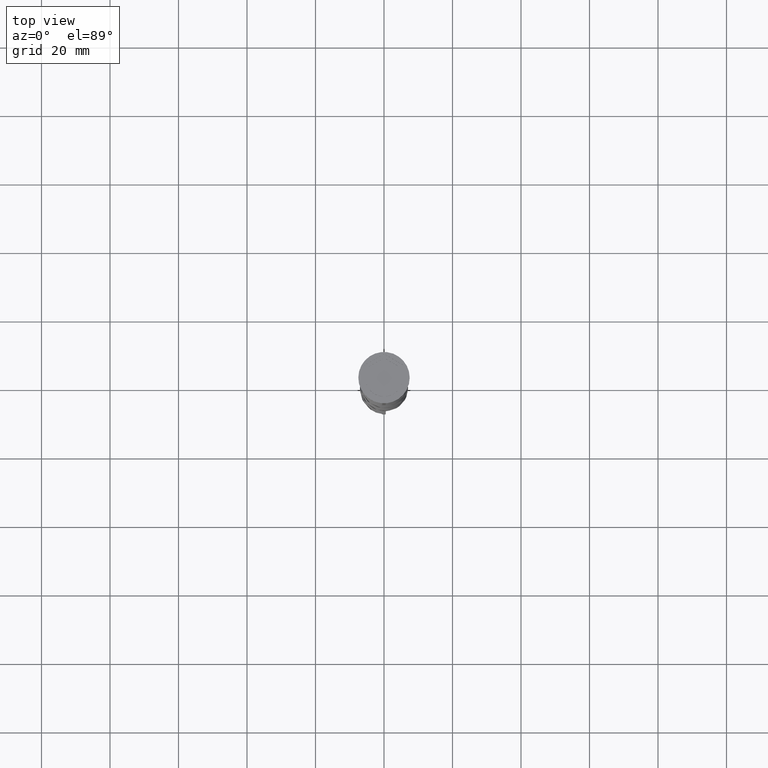
[diagram: clean part render]
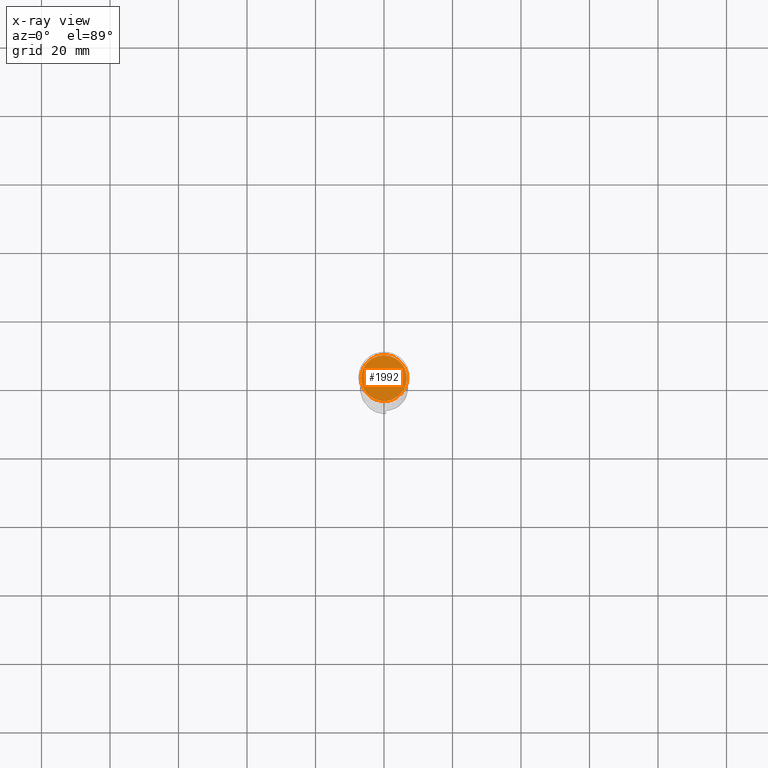
[diagram: x-ray — body ghosted, one internal face saturated and labeled with its STEP entity id]
A machine part, top view, then the same camera in x-ray: the body is ghosted and one INTERNAL B-rep face — a face not visible from any outside direction — is saturated and labeled: STEP entity #1992.
In plain terms, the highlighted planar face has unit normal (0, 0, -1).
Its self-contained STEP definition (entity closure, byte-faithful):
#66 = CARTESIAN_POINT ( 'NONE',  ( 0.000000000000000000, 0.000000000000000000, -10.50000000000000178 ) ) ;
#135 = AXIS2_PLACEMENT_3D ( 'NONE', #576, #3881, #3307 ) ;
#529 = DIRECTION ( 'NONE',  ( -0.000000000000000000, -0.000000000000000000, 1.000000000000000000 ) ) ;
#576 = CARTESIAN_POINT ( 'NONE',  ( 0.000000000000000000, 0.000000000000000000, -10.50000000000000178 ) ) ;
#617 = DIRECTION ( 'NONE',  ( 0.000000000000000000, 0.000000000000000000, -1.000000000000000000 ) ) ;
#743 = DIRECTION ( 'NONE',  ( -1.000000000000000000, 0.000000000000000000, 0.000000000000000000 ) ) ;
#767 = CIRCLE ( 'NONE', #3533, 6.700000000000001066 ) ;
#1205 = ORIENTED_EDGE ( 'NONE', *, *, #1977, .T. ) ;
#1292 = VERTEX_POINT ( 'NONE', #1580 ) ;
#1580 = CARTESIAN_POINT ( 'NONE',  ( -6.700000000000001066, 0.000000000000000000, -10.50000000000000178 ) ) ;
#1702 = CARTESIAN_POINT ( 'NONE',  ( 6.700000000000001066, 8.388830574159370862E-16, -10.50000000000000178 ) ) ;
#1977 = EDGE_CURVE ( 'NONE', #1292, #2317, #3841, .T. ) ;
#1989 = EDGE_LOOP ( 'NONE', ( #1205, #2498 ) ) ;
#1992 = ADVANCED_FACE ( 'NONE', ( #2120 ), #2698, .F. ) ;
#2120 = FACE_OUTER_BOUND ( 'NONE', #1989, .T. ) ;
#2305 = CARTESIAN_POINT ( 'NONE',  ( 0.000000000000000000, 0.000000000000000000, -10.50000000000000178 ) ) ;
#2317 = VERTEX_POINT ( 'NONE', #1702 ) ;
#2498 = ORIENTED_EDGE ( 'NONE', *, *, #2951, .T. ) ;
#2698 = PLANE ( 'NONE',  #2843 ) ;
#2843 = AXIS2_PLACEMENT_3D ( 'NONE', #66, #617, #2977 ) ;
#2951 = EDGE_CURVE ( 'NONE', #2317, #1292, #767, .T. ) ;
#2977 = DIRECTION ( 'NONE',  ( -1.000000000000000000, 0.000000000000000000, -0.000000000000000000 ) ) ;
#3307 = DIRECTION ( 'NONE',  ( -1.000000000000000000, 0.000000000000000000, 0.000000000000000000 ) ) ;
#3533 = AXIS2_PLACEMENT_3D ( 'NONE', #2305, #529, #743 ) ;
#3841 = CIRCLE ( 'NONE', #135, 6.700000000000001066 ) ;
#3881 = DIRECTION ( 'NONE',  ( -0.000000000000000000, -0.000000000000000000, 1.000000000000000000 ) ) ;